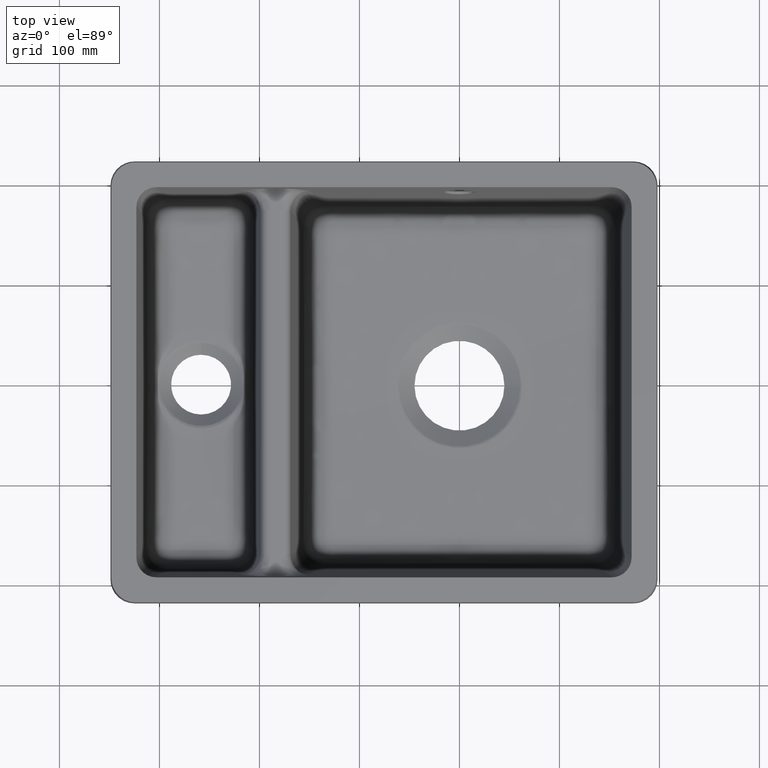
[diagram: clean part render]
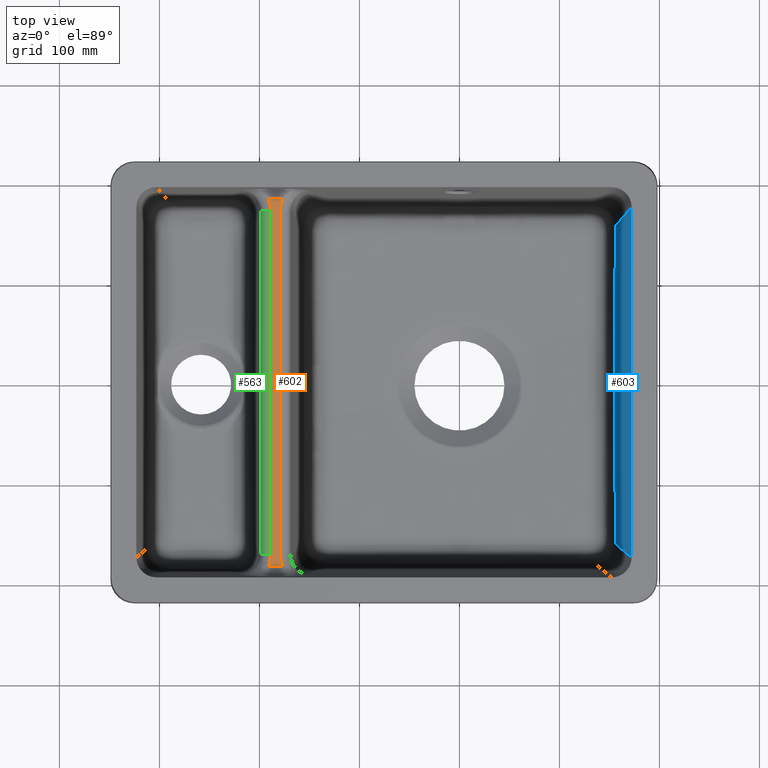
[diagram: same view with three faces highlighted in distinct colors, each labeled with its STEP entity id]
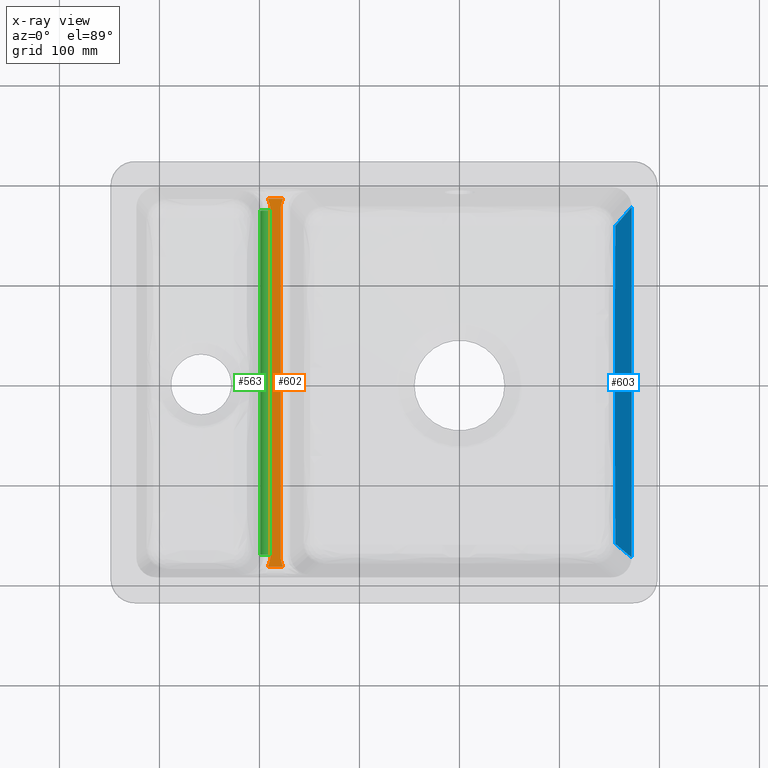
[diagram: x-ray of the same camera — body ghosted, the three highlighted faces saturated]
A machine part, top view with three faces highlighted in distinct colors.
The next image is the same camera in x-ray (body ghosted, the three faces saturated) — at least one of them is partly hidden behind the body in this view.
Their STEP definitions:

[orange] entity #602 — the highlighted planar face has unit normal (0, -0, 1).
#308=FACE_OUTER_BOUND('',#875,.T.);
#602=ADVANCED_FACE('',(#308),#672,.T.);
#672=PLANE('',#3106);
#875=EDGE_LOOP('',(#1755,#1756,#1757,#1758,#1759,#1760,#1761,#1762));
#1117=ELLIPSE('',#3062,30.3295964445195,30.);
#1118=ELLIPSE('',#3066,30.3295964445195,30.);
#1119=ELLIPSE('',#3067,30.3295964445195,30.);
#1120=ELLIPSE('',#3071,30.3295964445195,30.);
#1755=ORIENTED_EDGE('',*,*,#2534,.T.);
#1756=ORIENTED_EDGE('',*,*,#2515,.T.);
#1757=ORIENTED_EDGE('',*,*,#2535,.T.);
#1758=ORIENTED_EDGE('',*,*,#2539,.T.);
#1759=ORIENTED_EDGE('',*,*,#2542,.T.);
#1760=ORIENTED_EDGE('',*,*,#2523,.T.);
#1761=ORIENTED_EDGE('',*,*,#2527,.T.);
#1762=ORIENTED_EDGE('',*,*,#2531,.T.);
#2173=VERTEX_POINT('',#6660);
#2176=VERTEX_POINT('',#6730);
#2179=VERTEX_POINT('',#6803);
#2182=VERTEX_POINT('',#6873);
#2184=VERTEX_POINT('',#6945);
#2187=VERTEX_POINT('',#6998);
#2188=VERTEX_POINT('',#7052);
#2191=VERTEX_POINT('',#7105);
#2515=EDGE_CURVE('',#2173,#2176,#2740,.T.);
#2523=EDGE_CURVE('',#2179,#2182,#2742,.T.);
#2527=EDGE_CURVE('',#2182,#2184,#1117,.T.);
#2531=EDGE_CURVE('',#2184,#2187,#2744,.T.);
#2534=EDGE_CURVE('',#2187,#2173,#1118,.T.);
#2535=EDGE_CURVE('',#2176,#2188,#1119,.T.);
#2539=EDGE_CURVE('',#2188,#2191,#2746,.T.);
#2542=EDGE_CURVE('',#2191,#2179,#1120,.T.);
#2740=LINE('',#6731,#2841);
#2742=LINE('',#6874,#2843);
#2744=LINE('',#6999,#2845);
#2746=LINE('',#7106,#2847);
#2841=VECTOR('',#3537,1.);
#2843=VECTOR('',#3545,1.);
#2845=VECTOR('',#3555,1.);
#2847=VECTOR('',#3567,1.);
#3062=AXIS2_PLACEMENT_3D('',#6944,#3549,#3550);
#3066=AXIS2_PLACEMENT_3D('',#7020,#3559,#3560);
#3067=AXIS2_PLACEMENT_3D('',#7051,#3561,#3562);
#3071=AXIS2_PLACEMENT_3D('',#7127,#3571,#3572);
#3106=AXIS2_PLACEMENT_3D('',#8583,#3650,#3651);
#3537=DIRECTION('',(-1.,-7.88079515190513E-15,-6.24471060340355E-30));
#3545=DIRECTION('',(1.,-8.63059324829701E-15,-6.83884762037934E-30));
#3549=DIRECTION('',(-4.93038065763132E-32,7.92396006117978E-16,-1.));
#3550=DIRECTION('',(0.707106781186555,0.70710678118654,5.60308589311153E-16));
#3555=DIRECTION('',(-8.32841762506067E-17,1.,7.92396006117978E-16));
#3559=DIRECTION('',(0.,7.92396006117978E-16,-1.));
#3560=DIRECTION('',(-0.707106781186551,0.707106781186545,5.60308589311157E-16));
#3561=DIRECTION('',(0.,7.92396006117978E-16,-1.));
#3562=DIRECTION('',(0.707106781186545,0.70710678118655,5.60308589311161E-16));
#3567=DIRECTION('',(-2.20147362455929E-15,-1.,-7.92396006117978E-16));
#3571=DIRECTION('',(0.,7.92396006117978E-16,-1.));
#3572=DIRECTION('',(0.707106781186548,-0.707106781186547,-5.60308589311159E-16));
#3650=DIRECTION('',(0.,-7.92396006117978E-16,1.));
#3651=DIRECTION('',(0.,-1.,-7.91033905045424E-16));
#6660=CARTESIAN_POINT('',(-176.525916012944,183.893874851707,-21.0000000000019));
#6730=CARTESIAN_POINT('',(-191.371999281766,183.893874851707,-21.0000000000019));
#6731=CARTESIAN_POINT('',(-197.382667891942,183.893874851707,-21.0000000000019));
#6803=CARTESIAN_POINT('',(-191.371999281767,-183.893874851707,-21.0000000000022));
#6873=CARTESIAN_POINT('',(-176.525916012944,-183.893874851707,-21.0000000000022));
#6874=CARTESIAN_POINT('',(-170.515247402768,-183.893874851707,-21.0000000000022));
#6944=CARTESIAN_POINT('',(-148.787749703397,-171.736707350758,-21.0000000000022));
#6945=CARTESIAN_POINT('',(-178.952998090303,-172.066298876616,-21.0000000000022));
#6998=CARTESIAN_POINT('',(-178.952998090303,172.066298876616,-21.0000000000019));
#6999=CARTESIAN_POINT('',(-178.952998090303,-183.893874851707,-21.0000000000022));
#7020=CARTESIAN_POINT('',(-148.787749703397,171.736707350758,-21.0000000000019));
#7051=CARTESIAN_POINT('',(-219.110165591313,171.736707350758,-21.0000000000019));
#7052=CARTESIAN_POINT('',(-188.944917204407,172.066298876615,-21.0000000000019));
#7105=CARTESIAN_POINT('',(-188.944917204408,-172.066298876615,-21.0000000000021));
#7106=CARTESIAN_POINT('',(-188.944917204408,-183.893874851707,-21.0000000000022));
#7127=CARTESIAN_POINT('',(-219.110165591314,-171.736707350758,-21.0000000000021));
#8583=CARTESIAN_POINT('',(-176.525916012944,-183.893874851707,-21.0000000000022));

[blue] entity #603 — the highlighted planar face has unit normal (-0.9945, 0, 0.1045).
#309=FACE_OUTER_BOUND('',#876,.T.);
#603=ADVANCED_FACE('',(#309),#673,.T.);
#673=PLANE('',#3107);
#876=EDGE_LOOP('',(#1763,#1764,#1765,#1766));
#1007=B_SPLINE_CURVE_WITH_KNOTS('',3,(#6278,#6279,#6280,#6281),
 .UNSPECIFIED.,.F.,.F.,(4,4),(0.,1.),.UNSPECIFIED.);
#1017=B_SPLINE_CURVE_WITH_KNOTS('',3,(#6634,#6635,#6636,#6637,#6638,#6639),
 .UNSPECIFIED.,.F.,.F.,(4,2,4),(0.,0.5,1.),.UNSPECIFIED.);
#1763=ORIENTED_EDGE('',*,*,#2617,.T.);
#1764=ORIENTED_EDGE('',*,*,#2481,.T.);
#1765=ORIENTED_EDGE('',*,*,#2616,.T.);
#1766=ORIENTED_EDGE('',*,*,#2510,.F.);
#2150=VERTEX_POINT('',#6277);
#2151=VERTEX_POINT('',#6282);
#2164=VERTEX_POINT('',#6539);
#2171=VERTEX_POINT('',#6631);
#2481=EDGE_CURVE('',#2151,#2150,#1007,.T.);
#2510=EDGE_CURVE('',#2171,#2164,#1017,.T.);
#2616=EDGE_CURVE('',#2150,#2164,#2754,.T.);
#2617=EDGE_CURVE('',#2171,#2151,#2755,.T.);
#2754=LINE('',#8523,#2855);
#2755=LINE('',#8525,#2856);
#2855=VECTOR('',#3637,1.);
#2856=VECTOR('',#3640,1.);
#3107=AXIS2_PLACEMENT_3D('',#8584,#3652,#3653);
#3637=DIRECTION('',(-0.103962051184499,-0.103962051184498,-0.989132844377854));
#3640=DIRECTION('',(0.103962051184497,-0.103962051184498,0.989132844377854));
#3652=DIRECTION('',(-0.994521895368273,7.32107142678007E-15,0.104528463267654));
#3653=DIRECTION('',(0.104528463267654,0.,0.994521895368273));
#6277=CARTESIAN_POINT('',(172.156146587868,175.214662728453,-1.0322827509916E-10));
#6278=CARTESIAN_POINT('',(172.156146587877,-175.214666327902,-2.25470342657457E-13));
#6279=CARTESIAN_POINT('',(172.156146587878,-58.4048887759676,-3.14860233409631E-13));
#6280=CARTESIAN_POINT('',(172.156146587879,58.4048887759669,-4.04250124161806E-13));
#6281=CARTESIAN_POINT('',(172.156146587879,175.214666327901,-4.93640014913981E-13));
#6282=CARTESIAN_POINT('',(172.156146587871,-175.214666327895,-6.22158356112984E-11));
#6539=CARTESIAN_POINT('',(155.79398343103,158.852503171052,-155.675583533722));
#6631=CARTESIAN_POINT('',(155.793980539572,-158.852500279596,-155.675611044086));
#6634=CARTESIAN_POINT('',(155.793980085023,-158.852499825048,-155.675615368824));
#6635=CARTESIAN_POINT('',(155.608760627527,-105.893259965492,-157.437860791456));
#6636=CARTESIAN_POINT('',(155.456717727208,-52.9355258955356,-158.884452357778));
#6637=CARTESIAN_POINT('',(155.456772849497,52.9661381526524,-158.883927904234));
#6638=CARTESIAN_POINT('',(155.608819420514,105.910070466125,-157.437301413567));
#6639=CARTESIAN_POINT('',(155.793980085026,158.852499825048,-155.675615368824));
#8523=CARTESIAN_POINT('',(172.294209975731,175.352729715753,1.31358538980111));
#8525=CARTESIAN_POINT('',(150.818066212069,-153.876585952093,-203.018273448937));
#8584=CARTESIAN_POINT('',(172.294209975731,175.352729715753,1.31358538980111));

[green] entity #563 — the highlighted cylindrical surface (edge-blend (fillet) strip) has radius 10 mm, axis along (-0, -1, -0).
#164=CYLINDRICAL_SURFACE('',#3070,10.);
#270=FACE_OUTER_BOUND('',#835,.T.);
#434=CIRCLE('',#3068,10.);
#435=CIRCLE('',#3069,10.);
#563=ADVANCED_FACE('',(#270),#164,.T.);
#835=EDGE_LOOP('',(#1588,#1589,#1590,#1591));
#1588=ORIENTED_EDGE('',*,*,#2538,.T.);
#1589=ORIENTED_EDGE('',*,*,#2539,.F.);
#1590=ORIENTED_EDGE('',*,*,#2537,.F.);
#1591=ORIENTED_EDGE('',*,*,#2540,.F.);
#2188=VERTEX_POINT('',#7052);
#2189=VERTEX_POINT('',#7071);
#2190=VERTEX_POINT('',#7104);
#2191=VERTEX_POINT('',#7105);
#2537=EDGE_CURVE('',#2189,#2188,#434,.T.);
#2538=EDGE_CURVE('',#2190,#2191,#435,.T.);
#2539=EDGE_CURVE('',#2188,#2191,#2746,.T.);
#2540=EDGE_CURVE('',#2190,#2189,#2747,.T.);
#2746=LINE('',#7106,#2847);
#2747=LINE('',#7107,#2848);
#2847=VECTOR('',#3567,1.);
#2848=VECTOR('',#3568,1.);
#3068=AXIS2_PLACEMENT_3D('',#7072,#3563,#3564);
#3069=AXIS2_PLACEMENT_3D('',#7103,#3565,#3566);
#3070=AXIS2_PLACEMENT_3D('',#7108,#3569,#3570);
#3563=DIRECTION('',(5.83445709887867E-16,1.,5.55111512312578E-15));
#3564=DIRECTION('',(0.,-5.55111512312578E-15,1.));
#3565=DIRECTION('',(2.20147362455929E-15,1.,7.92396006117978E-16));
#3566=DIRECTION('',(1.,-2.77555756156289E-15,0.));
#3567=DIRECTION('',(-2.20147362455929E-15,-1.,-7.92396006117978E-16));
#3568=DIRECTION('',(2.20147362455929E-15,1.,7.92396006117978E-16));
#3569=DIRECTION('',(-2.20147362455929E-15,-1.,-7.92396006117978E-16));
#3570=DIRECTION('',(-1.,2.77555756156289E-15,0.));
#7052=CARTESIAN_POINT('',(-188.944917204407,172.066298876615,-21.0000000000019));
#7071=CARTESIAN_POINT('',(-198.89013615809,172.066298876615,-29.9547153673254));
#7072=CARTESIAN_POINT('',(-188.944917204407,172.066298876615,-31.0000000000019));
#7103=CARTESIAN_POINT('',(-188.944917204408,-172.066298876615,-31.0000000000022));
#7104=CARTESIAN_POINT('',(-198.890136158091,-172.066298876615,-29.9547153673256));
#7105=CARTESIAN_POINT('',(-188.944917204408,-172.066298876615,-21.0000000000021));
#7106=CARTESIAN_POINT('',(-188.944917204408,-183.893874851707,-21.0000000000022));
#7107=CARTESIAN_POINT('',(-198.89013615809,172.066298876615,-29.9547153673254));
#7108=CARTESIAN_POINT('',(-188.944917204408,-183.893874851707,-31.0000000000022));